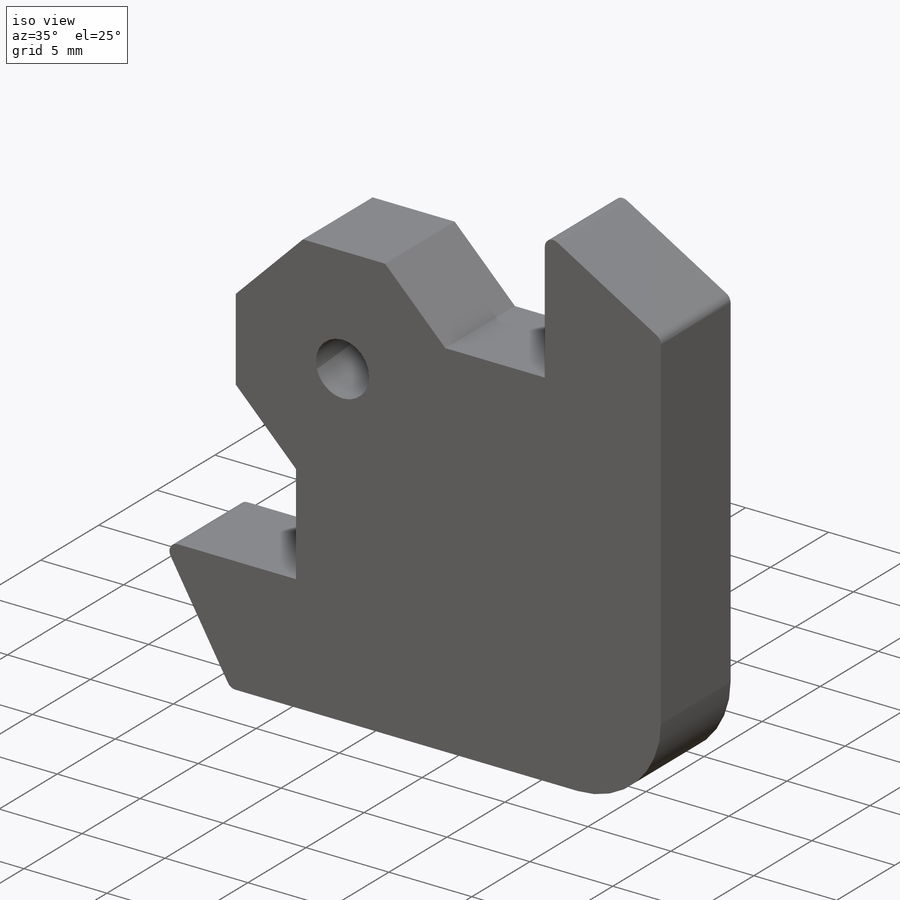
[diagram: iso view]
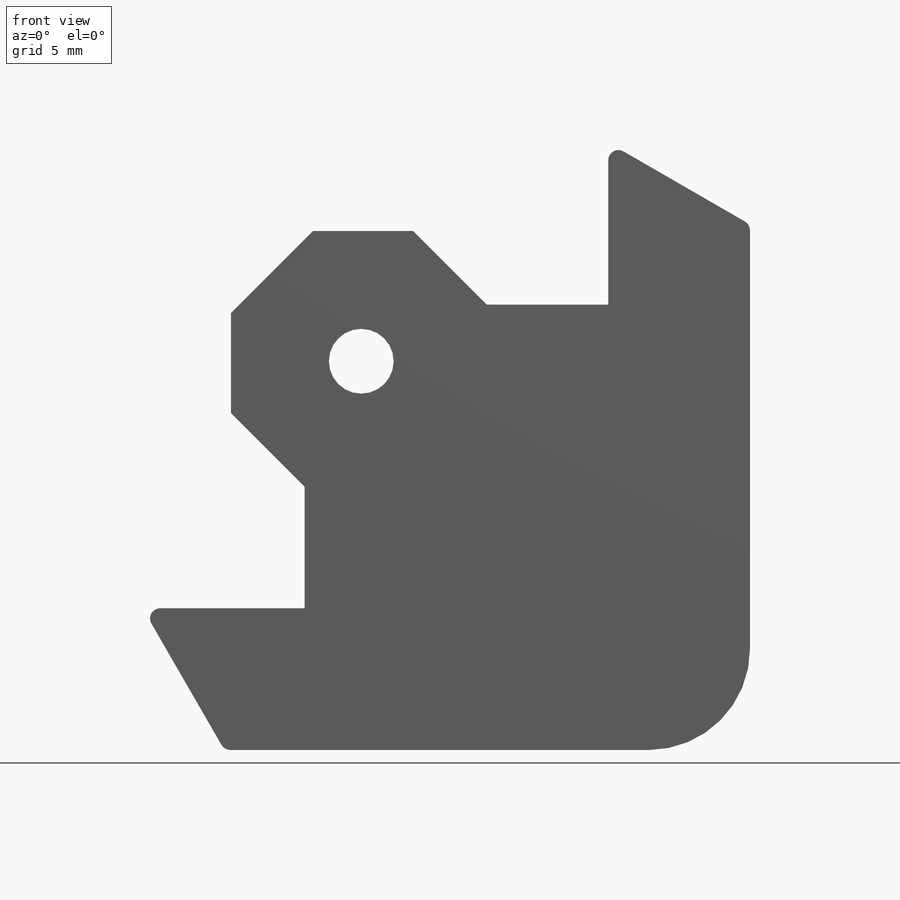
[diagram: front view]
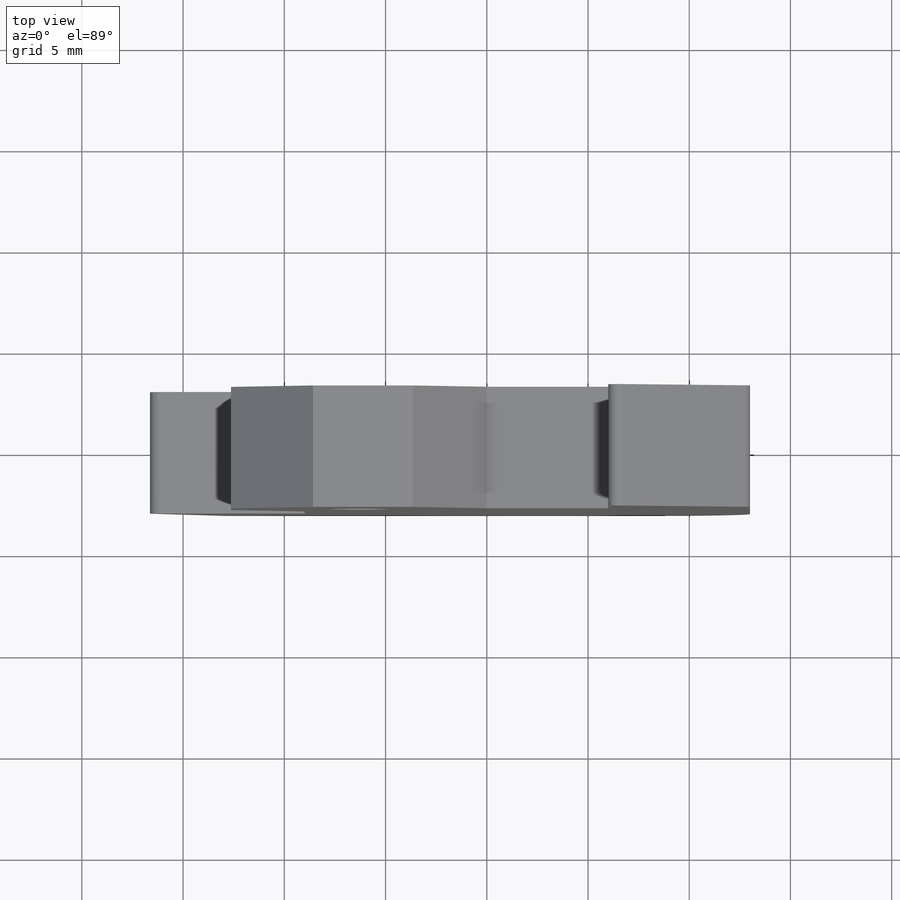
[diagram: top view]
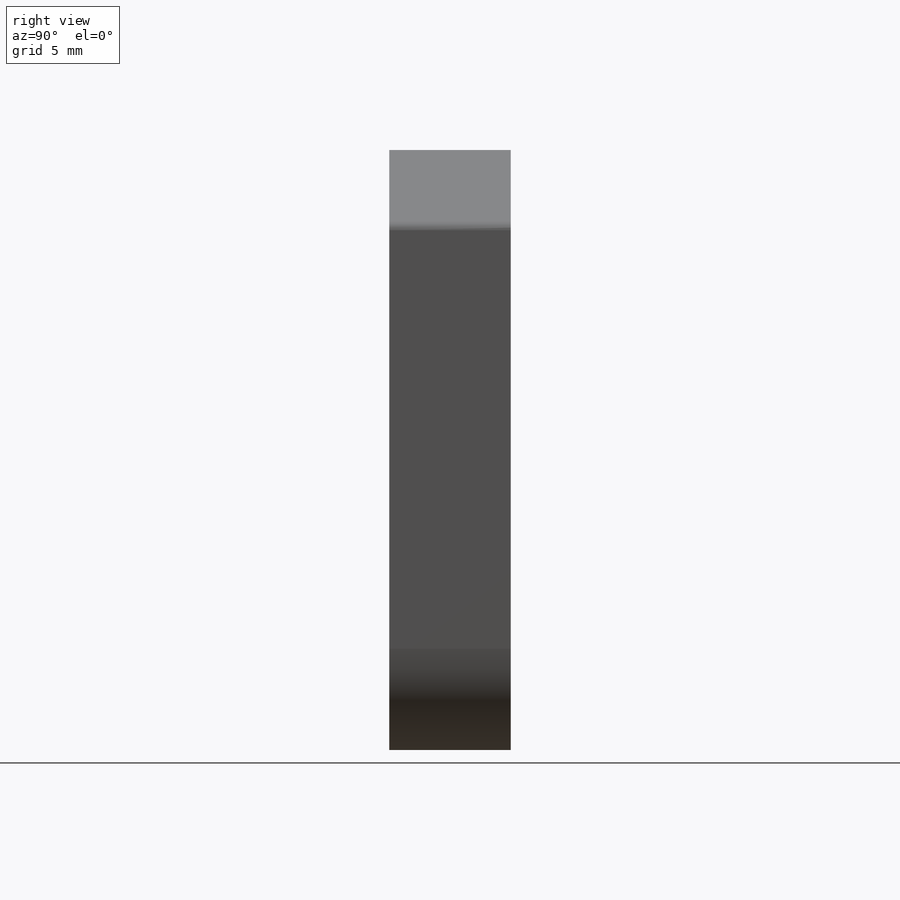
[diagram: right view]
SOLIDWORKS PART (.sldprt)
format: sldprt  version: not decoded by parser v0  size: 193,536 bytes
history: native  units: mm
features: sketch x3, extrude x2, material x1, fillet x1, cut_extrude x1, chamfer x1 (+16 scaffold rows collapsed)
feature tree (25):
  scaffold x16  (default folders/planes/origin — collapsed)
  material  "Acrylic (Medium-high impact)"
  sketch  "Sketch1"  dims[c1.D3=3.2mm c1.D1=9.5mm c1.D2=5.0mm c1.D4=6.2mm c2.D2=15.0mm c2.D5=10.0mm]
  extrude  "Boss-Extrude1"  Depth=6mm
  sketch  "Sketch2"  dims[c1.D5=5.0mm c1.D1=6.0mm c1.D2=9.0mm c1.D3=5.0mm c1.D4=9.0mm c1.D6=~5.997334mm c2.D6=60.0deg]
  extrude  "Boss-Extrude2"  Depth=6mm
  fillet  "Fillet1"  Radius=0.5mm
  sketch  "Sketch4"
  cut_extrude  "Cut-Extrude1"  [1 undecoded]
  chamfer  "Chamfer1"  Distance=3.5mm Angle=45deg
decode coverage: 6 of 8 modeling features carry decoded parameters
note: ~ marks probable driven/reference dimensions
note: 1 parameter value undecoded
note: suppression state not decoded; provenance and decode notes live in map.json
